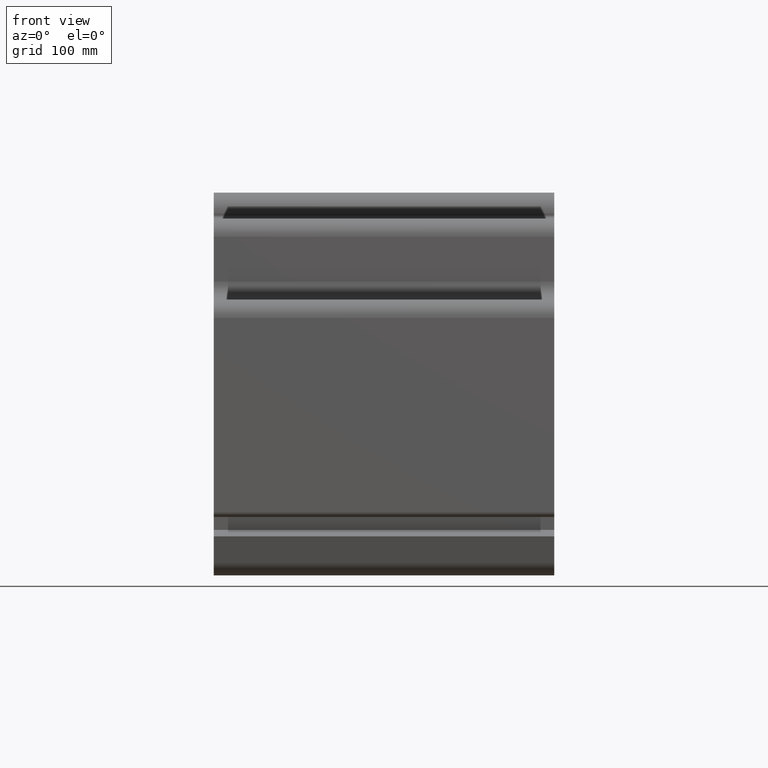
[diagram: clean part render]
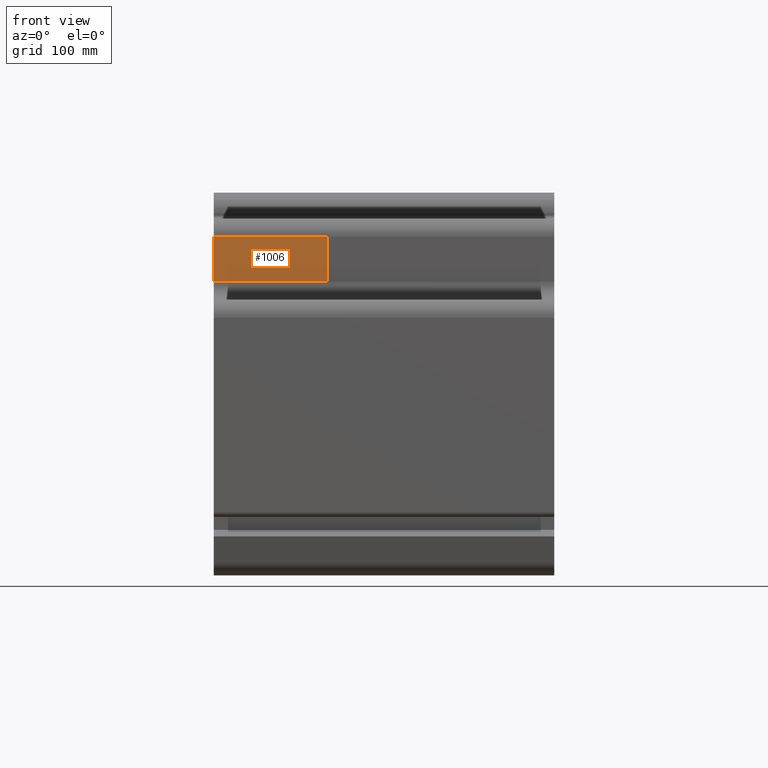
[diagram: same view with one face highlighted and labeled with its STEP entity id]
A machine part, front view. The second image highlights one B-rep face of the part: STEP entity #1006.
In plain terms, the highlighted planar face has unit normal (0, -1, 0).
Its self-contained STEP definition (entity closure, byte-faithful):
#948=CARTESIAN_POINT('',(175.00000000000028,-403.19999999999982,403.00000000000023));
#949=VERTEX_POINT('',#948);
#957=CARTESIAN_POINT('',(0.0,-403.19999999999982,403.00000000000023));
#958=VERTEX_POINT('',#957);
#959=CARTESIAN_POINT('',(0.0,-403.19999999999982,403.00000000000023));
#960=DIRECTION('',(1.0,0.0,0.0));
#961=VECTOR('',#960,175.00000000000028);
#962=LINE('',#959,#961);
#963=EDGE_CURVE('',#958,#949,#962,.T.);
#976=CARTESIAN_POINT('',(0.0,-403.19999999999982,403.00000000000023));
#977=DIRECTION('',(0.0,-1.0,0.0));
#978=DIRECTION('',(0.0,0.0,-1.0));
#979=AXIS2_PLACEMENT_3D('',#976,#977,#978);
#980=PLANE('',#979);
#981=CARTESIAN_POINT('',(175.00000000000028,-403.20000000000022,472.0));
#982=VERTEX_POINT('',#981);
#983=CARTESIAN_POINT('',(175.00000000000028,-403.19999999999982,403.00000000000023));
#984=DIRECTION('',(0.0,0.0,1.0));
#985=VECTOR('',#984,68.999999999999773);
#986=LINE('',#983,#985);
#987=EDGE_CURVE('',#949,#982,#986,.T.);
#988=ORIENTED_EDGE('',*,*,#987,.T.);
#989=CARTESIAN_POINT('',(0.0,-403.20000000000022,472.0));
#990=VERTEX_POINT('',#989);
#991=CARTESIAN_POINT('',(0.0,-403.20000000000022,472.0));
#992=DIRECTION('',(1.0,0.0,0.0));
#993=VECTOR('',#992,175.00000000000028);
#994=LINE('',#991,#993);
#995=EDGE_CURVE('',#990,#982,#994,.T.);
#996=ORIENTED_EDGE('',*,*,#995,.F.);
#997=CARTESIAN_POINT('',(0.0,-403.19999999999982,403.00000000000023));
#998=DIRECTION('',(0.0,0.0,1.0));
#999=VECTOR('',#998,68.999999999999773);
#1000=LINE('',#997,#999);
#1001=EDGE_CURVE('',#958,#990,#1000,.T.);
#1002=ORIENTED_EDGE('',*,*,#1001,.F.);
#1003=ORIENTED_EDGE('',*,*,#963,.T.);
#1004=EDGE_LOOP('',(#988,#996,#1002,#1003));
#1005=FACE_OUTER_BOUND('',#1004,.T.);
#1006=ADVANCED_FACE('',(#1005),#980,.T.);